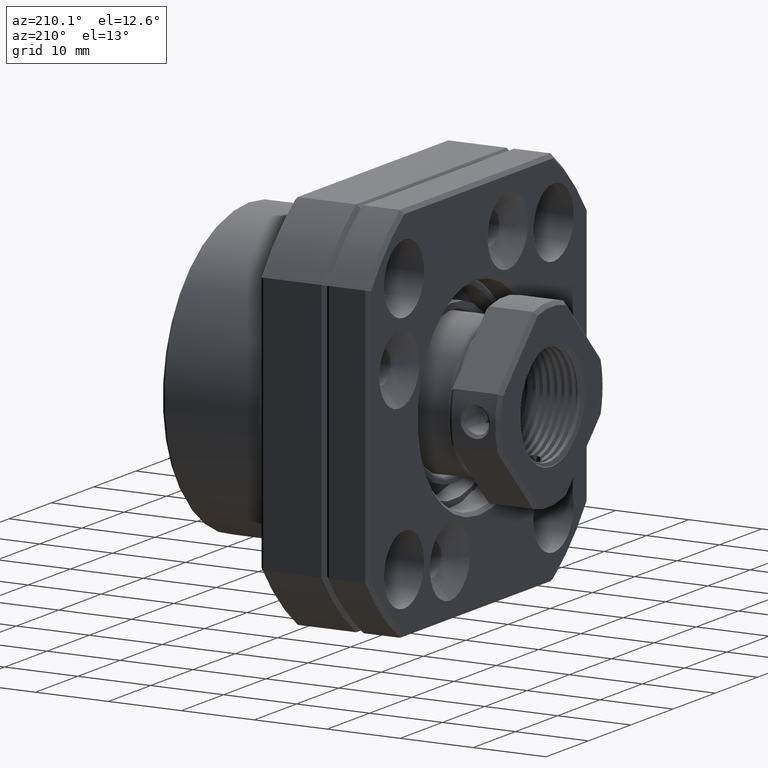
[diagram: clean part render]
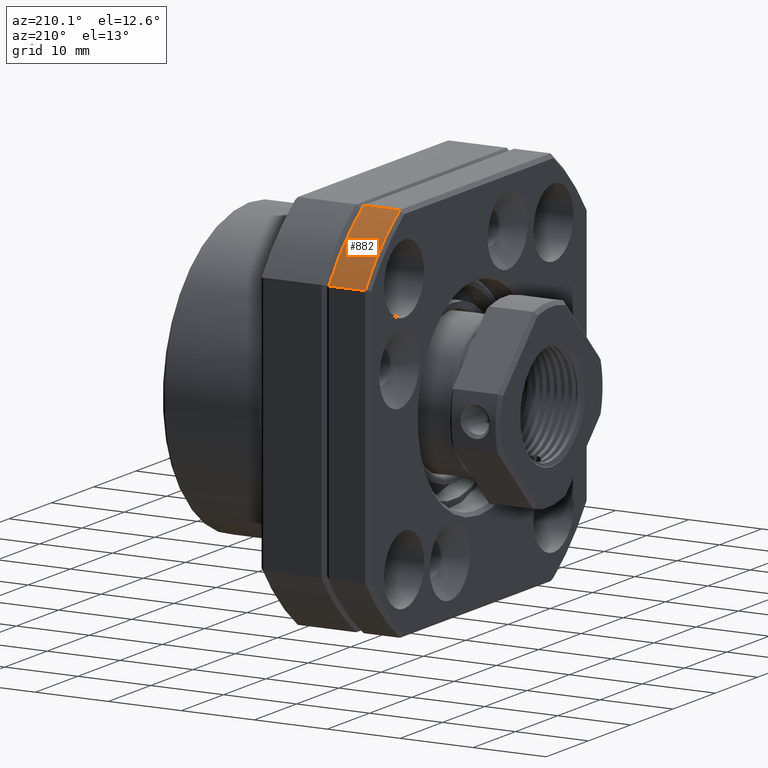
[diagram: same view with one face highlighted and labeled with its STEP entity id]
A machine part, auxiliary view. The second image highlights one B-rep face of the part: STEP entity #882.
In plain terms, the highlighted cylindrical surface (partial cylindrical patch) has radius 31.5 mm, axis along (-1, 0, 0).
Its self-contained STEP definition (entity closure, byte-faithful):
#825 = EDGE_LOOP ( 'NONE', ( #883, #887, #890, #893 ) ) ;
#882 = ADVANCED_FACE ( 'NONE', ( #4375 ), #4370, .T. ) ;
#883 = ORIENTED_EDGE ( 'NONE', *, *, #884, .F. ) ;
#884 = EDGE_CURVE ( 'NONE', #885, #886, #4365, .T. ) ;
#885 = VERTEX_POINT ( 'NONE', #4361 ) ;
#886 = VERTEX_POINT ( 'NONE', #4360 ) ;
#887 = ORIENTED_EDGE ( 'NONE', *, *, #888, .T. ) ;
#888 = EDGE_CURVE ( 'NONE', #885, #889, #4359, .T. ) ;
#889 = VERTEX_POINT ( 'NONE', #4417 ) ;
#890 = ORIENTED_EDGE ( 'NONE', *, *, #891, .F. ) ;
#891 = EDGE_CURVE ( 'NONE', #892, #889, #4416, .T. ) ;
#892 = VERTEX_POINT ( 'NONE', #4412 ) ;
#893 = ORIENTED_EDGE ( 'NONE', *, *, #894, .T. ) ;
#894 = EDGE_CURVE ( 'NONE', #892, #886, #4411, .T. ) ;
#4356 = DIRECTION ( 'NONE',  ( -1.000000000000000000, 0.0000000000000000000, 0.0000000000000000000 ) ) ;
#4357 = CARTESIAN_POINT ( 'NONE',  ( -0.5000000000000013300, -3.469446951953614200E-015, 6.938893903907228400E-015 ) ) ;
#4358 = AXIS2_PLACEMENT_3D ( 'NONE', #4357, #4356, #4418 ) ;
#4359 = CIRCLE ( 'NONE', #4358, 31.50000000000000000 ) ;
#4360 = CARTESIAN_POINT ( 'NONE',  ( -5.499999999999999100, 17.78341924377873800, 26.00000000000000700 ) ) ;
#4361 = CARTESIAN_POINT ( 'NONE',  ( -0.4999999999999943900, 17.78341924377873800, 26.00000000000000700 ) ) ;
#4362 = DIRECTION ( 'NONE',  ( -1.000000000000000000, 0.0000000000000000000, 0.0000000000000000000 ) ) ;
#4363 = VECTOR ( 'NONE', #4362, 1000.000000000000000 ) ;
#4364 = CARTESIAN_POINT ( 'NONE',  ( -48.83312411036066400, 17.78341924377873800, 26.00000000000000700 ) ) ;
#4365 = LINE ( 'NONE', #4364, #4363 ) ;
#4366 = DIRECTION ( 'NONE',  ( 0.0000000000000000000, 0.0000000000000000000, 1.000000000000000000 ) ) ;
#4367 = DIRECTION ( 'NONE',  ( -1.000000000000000000, 0.0000000000000000000, 0.0000000000000000000 ) ) ;
#4368 = CARTESIAN_POINT ( 'NONE',  ( -48.83312411036066400, -3.469446951953614200E-015, 6.938893903907228400E-015 ) ) ;
#4369 = AXIS2_PLACEMENT_3D ( 'NONE', #4368, #4367, #4366 ) ;
#4370 = CYLINDRICAL_SURFACE ( 'NONE', #4369, 31.50000000000000000 ) ;
#4375 = FACE_OUTER_BOUND ( 'NONE', #825, .T. ) ;
#4407 = DIRECTION ( 'NONE',  ( 0.0000000000000000000, 0.0000000000000000000, -1.000000000000000000 ) ) ;
#4408 = DIRECTION ( 'NONE',  ( 1.000000000000000000, 0.0000000000000000000, 0.0000000000000000000 ) ) ;
#4409 = CARTESIAN_POINT ( 'NONE',  ( -5.499999999999999100, -3.469446951953614200E-015, 6.938893903907228400E-015 ) ) ;
#4410 = AXIS2_PLACEMENT_3D ( 'NONE', #4409, #4408, #4407 ) ;
#4411 = CIRCLE ( 'NONE', #4410, 31.50000000000000000 ) ;
#4412 = CARTESIAN_POINT ( 'NONE',  ( -5.499999999999999100, 25.99999999999999600, 17.78341924377874900 ) ) ;
#4413 = DIRECTION ( 'NONE',  ( 1.000000000000000000, -0.0000000000000000000, -0.0000000000000000000 ) ) ;
#4414 = VECTOR ( 'NONE', #4413, 1000.000000000000000 ) ;
#4415 = CARTESIAN_POINT ( 'NONE',  ( -48.83312411036066400, 25.99999999999999600, 17.78341924377874900 ) ) ;
#4416 = LINE ( 'NONE', #4415, #4414 ) ;
#4417 = CARTESIAN_POINT ( 'NONE',  ( -0.4999999999999943900, 25.99999999999999600, 17.78341924377874900 ) ) ;
#4418 = DIRECTION ( 'NONE',  ( 0.0000000000000000000, 0.0000000000000000000, 1.000000000000000000 ) ) ;